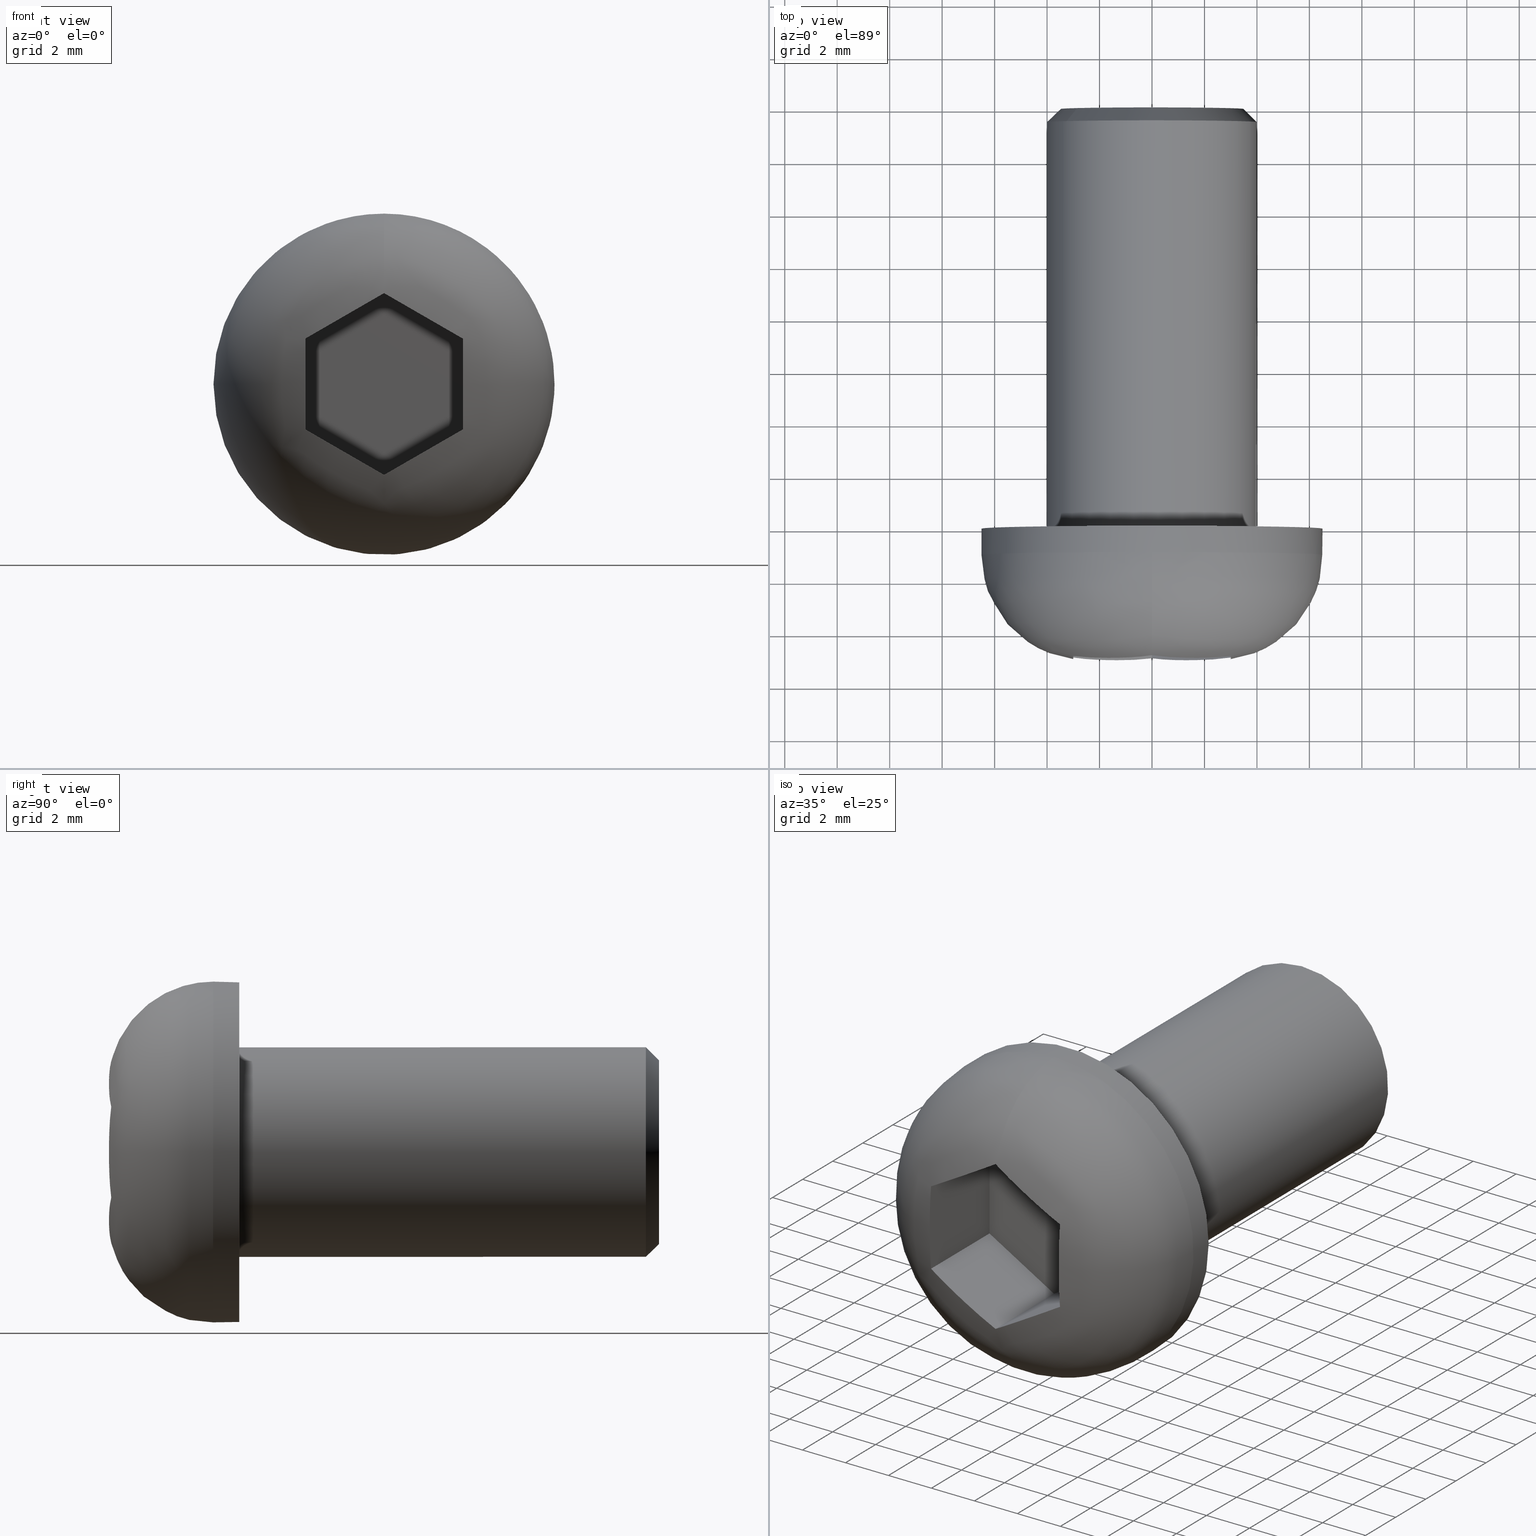
[diagram: canonical four-view strip — front | top / right | iso, engineering-drawing reading convention]
A machine part, canonical four-view strip (front | top / right | iso — engineering-drawing reading convention). The complete STEP part file that produces these views, byte-faithful:
ISO-10303-21;
HEADER;
/* Generated by software containing ST-Developer
 * from STEP Tools, Inc. (www.steptools.com) 
 */

FILE_DESCRIPTION(
/* description */ ('VITE TBEI 7380 10.9 8X16 ZN'),
/* implementation_level */ '2;1');

FILE_NAME(
/* name */ 
'C:\\Users\\tecnico7\\Desktop\\NUOVI DISEGNI 3D\\F3DTM0001586.stp',
/* time_stamp */ '2022-11-21T09:39:49+01:00',
/* author */ ('tecnico7'),
/* organization */ (''),
/* preprocessor_version */ 'ST-DEVELOPER v18.1',
/* originating_system */ 'Autodesk Inventor 2022',
/* authorisation */ '');

FILE_SCHEMA (('AUTOMOTIVE_DESIGN { 1 0 10303 214 3 1 1 }'));
ENDSEC;

DATA;
#10=MECHANICAL_DESIGN_GEOMETRIC_PRESENTATION_REPRESENTATION('',(#13),#447);
#11=SHAPE_REPRESENTATION_RELATIONSHIP('SRR','None',#454,#12);
#12=ADVANCED_BREP_SHAPE_REPRESENTATION('',(#14),#446);
#13=STYLED_ITEM('',(#463),#14);
#14=MANIFOLD_SOLID_BREP('None',#224);
#15=CONICAL_SURFACE('',#256,3.94999999998429,0.785398163397675);
#16=FACE_BOUND('',#74,.T.);
#17=PLANE('',#251);
#18=PLANE('',#258);
#19=PLANE('',#259);
#20=PLANE('',#260);
#21=PLANE('',#261);
#22=PLANE('',#262);
#23=PLANE('',#263);
#24=PLANE('',#264);
#25=PLANE('',#265);
#26=LINE('',#404,#41);
#27=LINE('',#412,#42);
#28=LINE('',#417,#43);
#29=LINE('',#421,#44);
#30=LINE('',#423,#45);
#31=LINE('',#424,#46);
#32=LINE('',#427,#47);
#33=LINE('',#428,#48);
#34=LINE('',#431,#49);
#35=LINE('',#432,#50);
#36=LINE('',#435,#51);
#37=LINE('',#436,#52);
#38=LINE('',#439,#53);
#39=LINE('',#440,#54);
#40=LINE('',#442,#55);
#41=VECTOR('',#276,6.49999999997408);
#42=VECTOR('',#285,3.99999999998409);
#43=VECTOR('',#292,3.94999999998429);
#44=VECTOR('',#297,3.88207522797666);
#45=VECTOR('',#298,3.88207522797666);
#46=VECTOR('',#299,3.46410161513775);
#47=VECTOR('',#302,3.88207522797666);
#48=VECTOR('',#303,3.46410161513775);
#49=VECTOR('',#306,3.88207522797666);
#50=VECTOR('',#307,3.46410161513775);
#51=VECTOR('',#310,3.88207522797666);
#52=VECTOR('',#311,3.46410161513775);
#53=VECTOR('',#314,3.88207522797666);
#54=VECTOR('',#315,3.46410161513776);
#55=VECTOR('',#318,3.46410161513776);
#56=CYLINDRICAL_SURFACE('',#249,6.49999999997408);
#57=CYLINDRICAL_SURFACE('',#253,3.99999999998409);
#58=FACE_OUTER_BOUND('',#71,.T.);
#59=FACE_OUTER_BOUND('',#72,.T.);
#60=FACE_OUTER_BOUND('',#73,.T.);
#61=FACE_OUTER_BOUND('',#75,.T.);
#62=FACE_OUTER_BOUND('',#76,.T.);
#63=FACE_OUTER_BOUND('',#77,.T.);
#64=FACE_OUTER_BOUND('',#78,.T.);
#65=FACE_OUTER_BOUND('',#79,.T.);
#66=FACE_OUTER_BOUND('',#80,.T.);
#67=FACE_OUTER_BOUND('',#81,.T.);
#68=FACE_OUTER_BOUND('',#82,.T.);
#69=FACE_OUTER_BOUND('',#83,.T.);
#70=FACE_OUTER_BOUND('',#84,.T.);
#71=EDGE_LOOP('',(#150,#151,#152,#153,#154,#155,#156,#157,#158,#159,#160));
#72=EDGE_LOOP('',(#161,#162,#163,#164,#165));
#73=EDGE_LOOP('',(#166));
#74=EDGE_LOOP('',(#167));
#75=EDGE_LOOP('',(#168,#169,#170,#171,#172));
#76=EDGE_LOOP('',(#173,#174,#175,#176,#177));
#77=EDGE_LOOP('',(#178));
#78=EDGE_LOOP('',(#179,#180,#181,#182));
#79=EDGE_LOOP('',(#183,#184,#185,#186));
#80=EDGE_LOOP('',(#187,#188,#189,#190));
#81=EDGE_LOOP('',(#191,#192,#193,#194,#195));
#82=EDGE_LOOP('',(#196,#197,#198,#199));
#83=EDGE_LOOP('',(#200,#201,#202,#203));
#84=EDGE_LOOP('',(#204,#205,#206,#207,#208,#209));
#85=CIRCLE('',#247,6.49999999997408);
#86=CIRCLE('',#248,6.49999999997408);
#87=CIRCLE('',#250,6.49999999997408);
#88=CIRCLE('',#252,3.99999999998409);
#89=CIRCLE('',#254,3.99999999998409);
#90=CIRCLE('',#255,3.99999999998409);
#91=CIRCLE('',#257,3.49999999998613);
#92=(
BOUNDED_CURVE()
B_SPLINE_CURVE(2,(#384,#385,#386),.UNSPECIFIED.,.F.,.F.)
B_SPLINE_CURVE_WITH_KNOTS((3,3),(-1.31910336717967,4.56802477800068E-13),
 .UNSPECIFIED.)
CURVE()
GEOMETRIC_REPRESENTATION_ITEM()
RATIONAL_B_SPLINE_CURVE((0.960110479545512,0.771855393049176,1.))
REPRESENTATION_ITEM('')
);
#93=B_SPLINE_CURVE_WITH_KNOTS('',3,(#351,#352,#353,#354),.UNSPECIFIED.,
 .F.,.F.,(4,4),(1.49072927553184,1.65455197266982),.UNSPECIFIED.);
#94=B_SPLINE_CURVE_WITH_KNOTS('',3,(#356,#357,#358,#359,#360,#361),
 .UNSPECIFIED.,.F.,.F.,(4,2,4),(1.32690657839386,1.49072927553184,1.65455197266982),
 .UNSPECIFIED.);
#95=B_SPLINE_CURVE_WITH_KNOTS('',3,(#363,#364,#365,#366,#367,#368),
 .UNSPECIFIED.,.F.,.F.,(4,2,4),(1.32690657839385,1.49072927553184,1.65455197266982),
 .UNSPECIFIED.);
#96=B_SPLINE_CURVE_WITH_KNOTS('',3,(#370,#371,#372,#373,#374,#375),
 .UNSPECIFIED.,.F.,.F.,(4,2,4),(1.32690657839385,1.49072927553184,1.65455197266982),
 .UNSPECIFIED.);
#97=B_SPLINE_CURVE_WITH_KNOTS('',3,(#377,#378,#379,#380,#381,#382),
 .UNSPECIFIED.,.F.,.F.,(4,2,4),(1.32690657839385,1.49072927553184,1.65455197266982),
 .UNSPECIFIED.);
#98=B_SPLINE_CURVE_WITH_KNOTS('',3,(#391,#392,#393,#394,#395,#396),
 .UNSPECIFIED.,.F.,.F.,(4,2,4),(1.32690657839385,1.49072927553184,1.65455197266982),
 .UNSPECIFIED.);
#99=B_SPLINE_CURVE_WITH_KNOTS('',3,(#397,#398,#399,#400),.UNSPECIFIED.,
 .F.,.F.,(4,4),(1.32690657839386,1.49072927553184),.UNSPECIFIED.);
#100=VERTEX_POINT('',#349);
#101=VERTEX_POINT('',#350);
#102=VERTEX_POINT('',#355);
#103=VERTEX_POINT('',#362);
#104=VERTEX_POINT('',#369);
#105=VERTEX_POINT('',#376);
#106=VERTEX_POINT('',#383);
#107=VERTEX_POINT('',#387);
#108=VERTEX_POINT('',#390);
#109=VERTEX_POINT('',#402);
#110=VERTEX_POINT('',#406);
#111=VERTEX_POINT('',#409);
#112=VERTEX_POINT('',#410);
#113=VERTEX_POINT('',#415);
#114=VERTEX_POINT('',#420);
#115=VERTEX_POINT('',#422);
#116=VERTEX_POINT('',#426);
#117=VERTEX_POINT('',#430);
#118=VERTEX_POINT('',#434);
#119=VERTEX_POINT('',#438);
#120=EDGE_CURVE('',#100,#101,#93,.T.);
#121=EDGE_CURVE('',#101,#102,#94,.T.);
#122=EDGE_CURVE('',#102,#103,#95,.T.);
#123=EDGE_CURVE('',#103,#104,#96,.T.);
#124=EDGE_CURVE('',#104,#105,#97,.T.);
#125=EDGE_CURVE('',#105,#106,#92,.T.);
#126=EDGE_CURVE('',#107,#106,#85,.T.);
#127=EDGE_CURVE('',#106,#107,#86,.T.);
#128=EDGE_CURVE('',#105,#108,#98,.T.);
#129=EDGE_CURVE('',#108,#100,#99,.T.);
#130=EDGE_CURVE('',#109,#109,#87,.T.);
#131=EDGE_CURVE('',#109,#107,#26,.T.);
#132=EDGE_CURVE('',#110,#110,#88,.T.);
#133=EDGE_CURVE('',#111,#112,#89,.T.);
#134=EDGE_CURVE('',#111,#110,#27,.T.);
#135=EDGE_CURVE('',#112,#111,#90,.T.);
#136=EDGE_CURVE('',#113,#113,#91,.T.);
#137=EDGE_CURVE('',#113,#112,#28,.T.);
#138=EDGE_CURVE('',#104,#114,#29,.T.);
#139=EDGE_CURVE('',#103,#115,#30,.T.);
#140=EDGE_CURVE('',#114,#115,#31,.T.);
#141=EDGE_CURVE('',#102,#116,#32,.T.);
#142=EDGE_CURVE('',#115,#116,#33,.T.);
#143=EDGE_CURVE('',#101,#117,#34,.T.);
#144=EDGE_CURVE('',#116,#117,#35,.T.);
#145=EDGE_CURVE('',#108,#118,#36,.T.);
#146=EDGE_CURVE('',#117,#118,#37,.T.);
#147=EDGE_CURVE('',#105,#119,#38,.T.);
#148=EDGE_CURVE('',#118,#119,#39,.T.);
#149=EDGE_CURVE('',#119,#114,#40,.T.);
#150=ORIENTED_EDGE('',*,*,#120,.T.);
#151=ORIENTED_EDGE('',*,*,#121,.T.);
#152=ORIENTED_EDGE('',*,*,#122,.T.);
#153=ORIENTED_EDGE('',*,*,#123,.T.);
#154=ORIENTED_EDGE('',*,*,#124,.T.);
#155=ORIENTED_EDGE('',*,*,#125,.T.);
#156=ORIENTED_EDGE('',*,*,#126,.F.);
#157=ORIENTED_EDGE('',*,*,#127,.F.);
#158=ORIENTED_EDGE('',*,*,#125,.F.);
#159=ORIENTED_EDGE('',*,*,#128,.T.);
#160=ORIENTED_EDGE('',*,*,#129,.T.);
#161=ORIENTED_EDGE('',*,*,#130,.F.);
#162=ORIENTED_EDGE('',*,*,#131,.T.);
#163=ORIENTED_EDGE('',*,*,#126,.T.);
#164=ORIENTED_EDGE('',*,*,#127,.T.);
#165=ORIENTED_EDGE('',*,*,#131,.F.);
#166=ORIENTED_EDGE('',*,*,#130,.T.);
#167=ORIENTED_EDGE('',*,*,#132,.F.);
#168=ORIENTED_EDGE('',*,*,#133,.F.);
#169=ORIENTED_EDGE('',*,*,#134,.T.);
#170=ORIENTED_EDGE('',*,*,#132,.T.);
#171=ORIENTED_EDGE('',*,*,#134,.F.);
#172=ORIENTED_EDGE('',*,*,#135,.F.);
#173=ORIENTED_EDGE('',*,*,#136,.F.);
#174=ORIENTED_EDGE('',*,*,#137,.T.);
#175=ORIENTED_EDGE('',*,*,#135,.T.);
#176=ORIENTED_EDGE('',*,*,#133,.T.);
#177=ORIENTED_EDGE('',*,*,#137,.F.);
#178=ORIENTED_EDGE('',*,*,#136,.T.);
#179=ORIENTED_EDGE('',*,*,#138,.F.);
#180=ORIENTED_EDGE('',*,*,#123,.F.);
#181=ORIENTED_EDGE('',*,*,#139,.T.);
#182=ORIENTED_EDGE('',*,*,#140,.F.);
#183=ORIENTED_EDGE('',*,*,#139,.F.);
#184=ORIENTED_EDGE('',*,*,#122,.F.);
#185=ORIENTED_EDGE('',*,*,#141,.T.);
#186=ORIENTED_EDGE('',*,*,#142,.F.);
#187=ORIENTED_EDGE('',*,*,#141,.F.);
#188=ORIENTED_EDGE('',*,*,#121,.F.);
#189=ORIENTED_EDGE('',*,*,#143,.T.);
#190=ORIENTED_EDGE('',*,*,#144,.F.);
#191=ORIENTED_EDGE('',*,*,#143,.F.);
#192=ORIENTED_EDGE('',*,*,#120,.F.);
#193=ORIENTED_EDGE('',*,*,#129,.F.);
#194=ORIENTED_EDGE('',*,*,#145,.T.);
#195=ORIENTED_EDGE('',*,*,#146,.F.);
#196=ORIENTED_EDGE('',*,*,#145,.F.);
#197=ORIENTED_EDGE('',*,*,#128,.F.);
#198=ORIENTED_EDGE('',*,*,#147,.T.);
#199=ORIENTED_EDGE('',*,*,#148,.F.);
#200=ORIENTED_EDGE('',*,*,#149,.F.);
#201=ORIENTED_EDGE('',*,*,#147,.F.);
#202=ORIENTED_EDGE('',*,*,#124,.F.);
#203=ORIENTED_EDGE('',*,*,#138,.T.);
#204=ORIENTED_EDGE('',*,*,#140,.T.);
#205=ORIENTED_EDGE('',*,*,#142,.T.);
#206=ORIENTED_EDGE('',*,*,#144,.T.);
#207=ORIENTED_EDGE('',*,*,#146,.T.);
#208=ORIENTED_EDGE('',*,*,#148,.T.);
#209=ORIENTED_EDGE('',*,*,#149,.T.);
#210=(
BOUNDED_SURFACE()
B_SPLINE_SURFACE(2,2,((#322,#323,#324,#325,#326,#327,#328,#329,#330),(#331,
#332,#333,#334,#335,#336,#337,#338,#339),(#340,#341,#342,#343,#344,#345,
#346,#347,#348)),.UNSPECIFIED.,.F.,.T.,.F.)
B_SPLINE_SURFACE_WITH_KNOTS((3,3),(3,2,2,2,3),(-4.56802477800068E-13,1.44546849562421),
(-3.14159265358979,-1.5707963267949,0.,1.5707963267949,3.14159265358979),
 .UNSPECIFIED.)
GEOMETRIC_REPRESENTATION_ITEM()
RATIONAL_B_SPLINE_SURFACE(((1.,0.707106781186548,1.,0.707106781186548,1.,
0.707106781186548,1.,0.707106781186548,1.),(0.750000000000716,0.530330085890417,
0.750000000000716,0.530330085890417,0.750000000000716,0.530330085890417,
0.750000000000716,0.530330085890417,0.750000000000716),(1.,0.707106781186548,
1.,0.707106781186548,1.,0.707106781186548,1.,0.707106781186548,1.)))
REPRESENTATION_ITEM('')
SURFACE()
);
#211=ADVANCED_FACE('',(#58),#210,.F.);
#212=ADVANCED_FACE('',(#59),#56,.T.);
#213=ADVANCED_FACE('',(#60,#16),#17,.T.);
#214=ADVANCED_FACE('',(#61),#57,.T.);
#215=ADVANCED_FACE('',(#62),#15,.T.);
#216=ADVANCED_FACE('',(#63),#18,.T.);
#217=ADVANCED_FACE('',(#64),#19,.T.);
#218=ADVANCED_FACE('',(#65),#20,.T.);
#219=ADVANCED_FACE('',(#66),#21,.T.);
#220=ADVANCED_FACE('',(#67),#22,.T.);
#221=ADVANCED_FACE('',(#68),#23,.T.);
#222=ADVANCED_FACE('',(#69),#24,.T.);
#223=ADVANCED_FACE('',(#70),#25,.T.);
#224=CLOSED_SHELL('',(#211,#212,#213,#214,#215,#216,#217,#218,#219,#220,
#221,#222,#223));
#225=DERIVED_UNIT_ELEMENT(#228,1.);
#226=DERIVED_UNIT_ELEMENT(#449,-3.);
#227=DIMENSIONAL_EXPONENTS(1.,0.,0.,0.,0.,0.,0.);
#228=(
CONVERSION_BASED_UNIT('gram',#230)
MASS_UNIT()
NAMED_UNIT(#227)
);
#229=(
MASS_UNIT()
NAMED_UNIT(*)
SI_UNIT(.KILO.,.GRAM.)
);
#230=MASS_MEASURE_WITH_UNIT(MASS_MEASURE(0.001),#229);
#231=DERIVED_UNIT((#225,#226));
#232=MEASURE_REPRESENTATION_ITEM('density measure',
POSITIVE_RATIO_MEASURE(7.85),#231);
#233=PROPERTY_DEFINITION_REPRESENTATION(#238,#235);
#234=PROPERTY_DEFINITION_REPRESENTATION(#239,#236);
#235=REPRESENTATION('material name',(#237),#446);
#236=REPRESENTATION('density',(#232),#446);
#237=DESCRIPTIVE_REPRESENTATION_ITEM('Acciaio','Acciaio');
#238=PROPERTY_DEFINITION('material property','material name',#456);
#239=PROPERTY_DEFINITION('material property','density of part',#456);
#240=DATE_TIME_ROLE('creation_date');
#241=APPLIED_DATE_AND_TIME_ASSIGNMENT(#242,#240,(#456));
#242=DATE_AND_TIME(#243,#244);
#243=CALENDAR_DATE(2013,27,6);
#244=LOCAL_TIME(0,0,0.,#245);
#245=COORDINATED_UNIVERSAL_TIME_OFFSET(0,0,.BEHIND.);
#246=AXIS2_PLACEMENT_3D('placement',#321,#266,#267);
#247=AXIS2_PLACEMENT_3D('',#388,#268,#269);
#248=AXIS2_PLACEMENT_3D('',#389,#270,#271);
#249=AXIS2_PLACEMENT_3D('',#401,#272,#273);
#250=AXIS2_PLACEMENT_3D('',#403,#274,#275);
#251=AXIS2_PLACEMENT_3D('',#405,#277,#278);
#252=AXIS2_PLACEMENT_3D('',#407,#279,#280);
#253=AXIS2_PLACEMENT_3D('',#408,#281,#282);
#254=AXIS2_PLACEMENT_3D('',#411,#283,#284);
#255=AXIS2_PLACEMENT_3D('',#413,#286,#287);
#256=AXIS2_PLACEMENT_3D('',#414,#288,#289);
#257=AXIS2_PLACEMENT_3D('',#416,#290,#291);
#258=AXIS2_PLACEMENT_3D('',#418,#293,#294);
#259=AXIS2_PLACEMENT_3D('',#419,#295,#296);
#260=AXIS2_PLACEMENT_3D('',#425,#300,#301);
#261=AXIS2_PLACEMENT_3D('',#429,#304,#305);
#262=AXIS2_PLACEMENT_3D('',#433,#308,#309);
#263=AXIS2_PLACEMENT_3D('',#437,#312,#313);
#264=AXIS2_PLACEMENT_3D('',#441,#316,#317);
#265=AXIS2_PLACEMENT_3D('',#443,#319,#320);
#266=DIRECTION('axis',(0.,0.,1.));
#267=DIRECTION('refdir',(1.,0.,0.));
#268=DIRECTION('center_axis',(0.,1.,0.));
#269=DIRECTION('ref_axis',(1.,0.,0.));
#270=DIRECTION('center_axis',(0.,1.,0.));
#271=DIRECTION('ref_axis',(1.,0.,0.));
#272=DIRECTION('center_axis',(0.,1.,0.));
#273=DIRECTION('ref_axis',(1.,0.,0.));
#274=DIRECTION('center_axis',(0.,1.,0.));
#275=DIRECTION('ref_axis',(1.,0.,0.));
#276=DIRECTION('',(0.,-1.,0.));
#277=DIRECTION('center_axis',(0.,1.,0.));
#278=DIRECTION('ref_axis',(0.,0.,1.));
#279=DIRECTION('center_axis',(0.,1.,0.));
#280=DIRECTION('ref_axis',(1.,0.,0.));
#281=DIRECTION('center_axis',(0.,1.,0.));
#282=DIRECTION('ref_axis',(1.,0.,0.));
#283=DIRECTION('center_axis',(0.,1.,0.));
#284=DIRECTION('ref_axis',(1.,0.,0.));
#285=DIRECTION('',(0.,-1.,0.));
#286=DIRECTION('center_axis',(0.,1.,0.));
#287=DIRECTION('ref_axis',(1.,0.,0.));
#288=DIRECTION('center_axis',(-5.60707097042313E-17,-1.,-7.60126447506034E-16));
#289=DIRECTION('ref_axis',(0.813826036051075,3.96084197960991E-16,-0.581108581114919));
#290=DIRECTION('center_axis',(0.,1.,0.));
#291=DIRECTION('ref_axis',(1.,0.,0.));
#292=DIRECTION('',(-0.575461908798013,-0.707106781186388,0.410905818312145));
#293=DIRECTION('center_axis',(0.,1.,0.));
#294=DIRECTION('ref_axis',(0.,0.,1.));
#295=DIRECTION('center_axis',(1.,0.,0.));
#296=DIRECTION('ref_axis',(0.,0.,-1.));
#297=DIRECTION('',(0.,1.,0.));
#298=DIRECTION('',(0.,1.,0.));
#299=DIRECTION('',(0.,0.,-1.));
#300=DIRECTION('center_axis',(0.5,0.,0.866025403784439));
#301=DIRECTION('ref_axis',(0.866025403784439,0.,-0.5));
#302=DIRECTION('',(0.,1.,0.));
#303=DIRECTION('',(0.866025403784439,0.,-0.5));
#304=DIRECTION('center_axis',(-0.5,0.,0.866025403784439));
#305=DIRECTION('ref_axis',(0.866025403784439,0.,0.5));
#306=DIRECTION('',(0.,1.,0.));
#307=DIRECTION('',(0.866025403784439,0.,0.5));
#308=DIRECTION('center_axis',(-1.,0.,0.));
#309=DIRECTION('ref_axis',(0.,0.,1.));
#310=DIRECTION('',(0.,1.,0.));
#311=DIRECTION('',(0.,0.,1.));
#312=DIRECTION('center_axis',(-0.5,0.,-0.866025403784438));
#313=DIRECTION('ref_axis',(-0.866025403784438,0.,0.5));
#314=DIRECTION('',(0.,1.,0.));
#315=DIRECTION('',(-0.866025403784438,0.,0.5));
#316=DIRECTION('center_axis',(0.5,0.,-0.866025403784439));
#317=DIRECTION('ref_axis',(-0.866025403784439,0.,-0.5));
#318=DIRECTION('',(-0.866025403784439,0.,-0.5));
#319=DIRECTION('center_axis',(0.,-1.,0.));
#320=DIRECTION('ref_axis',(0.,0.,-1.));
#321=CARTESIAN_POINT('',(0.,0.,0.));
#322=CARTESIAN_POINT('Ctrl Pts',(2.91433543963884E-15,-0.999999999995891,
6.49999999997408));
#323=CARTESIAN_POINT('Ctrl Pts',(-6.49999999997408,-0.999999999995899,6.49999999997408));
#324=CARTESIAN_POINT('Ctrl Pts',(-6.49999999997408,-0.999999999995905,1.24900090270172E-15));
#325=CARTESIAN_POINT('Ctrl Pts',(-6.49999999997408,-0.99999999999591,-6.49999999997408));
#326=CARTESIAN_POINT('Ctrl Pts',(2.91433543963884E-15,-0.999999999995902,
-6.49999999997408));
#327=CARTESIAN_POINT('Ctrl Pts',(6.49999999997408,-0.999999999995895,-6.49999999997408));
#328=CARTESIAN_POINT('Ctrl Pts',(6.49999999997409,-0.999999999995889,1.24900090270171E-15));
#329=CARTESIAN_POINT('Ctrl Pts',(6.49999999997408,-0.999999999995883,6.49999999997408));
#330=CARTESIAN_POINT('Ctrl Pts',(2.91433543963884E-15,-0.999999999995891,
6.49999999997408));
#331=CARTESIAN_POINT('Ctrl Pts',(7.15911465258913E-15,-4.52766841472535,
6.4999999999757));
#332=CARTESIAN_POINT('Ctrl Pts',(-6.49999999997569,-4.52766841472536,6.4999999999757));
#333=CARTESIAN_POINT('Ctrl Pts',(-6.49999999997569,-4.52766841472537,4.30805414182356E-15));
#334=CARTESIAN_POINT('Ctrl Pts',(-6.49999999997569,-4.52766841472537,-6.49999999997569));
#335=CARTESIAN_POINT('Ctrl Pts',(7.15911465258913E-15,-4.52766841472536,
-6.49999999997569));
#336=CARTESIAN_POINT('Ctrl Pts',(6.4999999999757,-4.52766841472536,-6.49999999997569));
#337=CARTESIAN_POINT('Ctrl Pts',(6.4999999999757,-4.52766841472535,4.30805414182354E-15));
#338=CARTESIAN_POINT('Ctrl Pts',(6.4999999999757,-4.52766841472534,6.4999999999757));
#339=CARTESIAN_POINT('Ctrl Pts',(7.15911465258913E-15,-4.52766841472535,
6.4999999999757));
#340=CARTESIAN_POINT('Ctrl Pts',(7.68971205421895E-15,-4.96862696657571,
3.));
#341=CARTESIAN_POINT('Ctrl Pts',(-2.99999999999998,-4.96862696657571,3.));
#342=CARTESIAN_POINT('Ctrl Pts',(-2.99999999999998,-4.96862696657571,4.69043579672173E-15));
#343=CARTESIAN_POINT('Ctrl Pts',(-2.99999999999998,-4.96862696657571,-2.99999999999999));
#344=CARTESIAN_POINT('Ctrl Pts',(7.68971205421895E-15,-4.96862696657571,
-2.99999999999999));
#345=CARTESIAN_POINT('Ctrl Pts',(3.,-4.96862696657571,-2.99999999999999));
#346=CARTESIAN_POINT('Ctrl Pts',(3.,-4.9686269665757,4.69043579672172E-15));
#347=CARTESIAN_POINT('Ctrl Pts',(3.,-4.9686269665757,3.));
#348=CARTESIAN_POINT('Ctrl Pts',(7.68971205421895E-15,-4.96862696657571,
3.));
#349=CARTESIAN_POINT('',(3.,-4.96862696657581,0.));
#350=CARTESIAN_POINT('',(3.,-4.88207522795665,-1.73205080756888));
#351=CARTESIAN_POINT('Ctrl Pts',(3.,-4.9686269665757,4.61436444609831E-15));
#352=CARTESIAN_POINT('Ctrl Pts',(3.,-4.9686269665757,-0.546075657126606));
#353=CARTESIAN_POINT('Ctrl Pts',(3.,-4.9550549531712,-1.14432690181362));
#354=CARTESIAN_POINT('Ctrl Pts',(3.,-4.88207522795649,-1.73205080756886));
#355=CARTESIAN_POINT('',(0.,-4.88207522795665,-3.46410161513775));
#356=CARTESIAN_POINT('Ctrl Pts',(2.99999999999998,-4.8820752279565,-1.73205080756889));
#357=CARTESIAN_POINT('Ctrl Pts',(2.49101616720454,-4.9550549531712,-2.02591276044651));
#358=CARTESIAN_POINT('Ctrl Pts',(1.97291539145993,-4.96862696657571,-2.32503838279001));
#359=CARTESIAN_POINT('Ctrl Pts',(1.02708460854008,-4.96862696657571,-2.87111403991662));
#360=CARTESIAN_POINT('Ctrl Pts',(0.508983832795468,-4.9550549531712,-3.17023966226012));
#361=CARTESIAN_POINT('Ctrl Pts',(1.70696790036118E-14,-4.8820752279565,
-3.46410161513775));
#362=CARTESIAN_POINT('',(-3.,-4.88207522795665,-1.73205080756888));
#363=CARTESIAN_POINT('Ctrl Pts',(-1.62370117351429E-14,-4.8820752279565,
-3.46410161513774));
#364=CARTESIAN_POINT('Ctrl Pts',(-0.508983832795463,-4.9550549531712,-3.17023966226013));
#365=CARTESIAN_POINT('Ctrl Pts',(-1.02708460854007,-4.96862696657571,-2.87111403991662));
#366=CARTESIAN_POINT('Ctrl Pts',(-1.97291539145992,-4.96862696657571,-2.32503838279001));
#367=CARTESIAN_POINT('Ctrl Pts',(-2.49101616720453,-4.95505495317121,-2.02591276044651));
#368=CARTESIAN_POINT('Ctrl Pts',(-2.99999999999998,-4.8820752279565,-1.73205080756889));
#369=CARTESIAN_POINT('',(-3.,-4.88207522795665,1.73205080756888));
#370=CARTESIAN_POINT('Ctrl Pts',(-3.,-4.8820752279565,-1.73205080756886));
#371=CARTESIAN_POINT('Ctrl Pts',(-3.,-4.95505495317121,-1.14432690181362));
#372=CARTESIAN_POINT('Ctrl Pts',(-3.,-4.96862696657571,-0.546075657126606));
#373=CARTESIAN_POINT('Ctrl Pts',(-3.,-4.96862696657571,0.546075657126612));
#374=CARTESIAN_POINT('Ctrl Pts',(-3.,-4.9550549531712,1.14432690181362));
#375=CARTESIAN_POINT('Ctrl Pts',(-3.,-4.8820752279565,1.73205080756886));
#376=CARTESIAN_POINT('',(0.,-4.88207522795665,3.46410161513775));
#377=CARTESIAN_POINT('Ctrl Pts',(-2.99999999999998,-4.8820752279565,1.73205080756889));
#378=CARTESIAN_POINT('Ctrl Pts',(-2.49101616720453,-4.9550549531712,2.02591276044651));
#379=CARTESIAN_POINT('Ctrl Pts',(-1.97291539145992,-4.96862696657571,2.32503838279002));
#380=CARTESIAN_POINT('Ctrl Pts',(-1.02708460854007,-4.96862696657571,2.87111403991662));
#381=CARTESIAN_POINT('Ctrl Pts',(-0.508983832795462,-4.9550549531712,3.17023966226013));
#382=CARTESIAN_POINT('Ctrl Pts',(-1.65839564303383E-14,-4.88207522795649,
3.46410161513775));
#383=CARTESIAN_POINT('',(2.11831502019625E-15,-0.999999999995907,6.49999999997408));
#384=CARTESIAN_POINT('Ctrl Pts',(7.58556592205939E-15,-4.8820752279565,
3.46410161513772));
#385=CARTESIAN_POINT('Ctrl Pts',(6.67834419253319E-15,-4.12811906678753,
6.49999999997552));
#386=CARTESIAN_POINT('Ctrl Pts',(2.91433543963884E-15,-0.999999999995891,
6.49999999997408));
#387=CARTESIAN_POINT('',(-6.49999999997408,-0.999999999995907,0.));
#388=CARTESIAN_POINT('Origin',(0.,-0.999999999995907,0.));
#389=CARTESIAN_POINT('Origin',(0.,-0.999999999995907,0.));
#390=CARTESIAN_POINT('',(3.,-4.88207522795665,1.73205080756888));
#391=CARTESIAN_POINT('Ctrl Pts',(1.78329573330416E-14,-4.88207522795649,
3.46410161513775));
#392=CARTESIAN_POINT('Ctrl Pts',(0.508983832795468,-4.9550549531712,3.17023966226012));
#393=CARTESIAN_POINT('Ctrl Pts',(1.02708460854008,-4.9686269665757,2.87111403991662));
#394=CARTESIAN_POINT('Ctrl Pts',(1.97291539145993,-4.9686269665757,2.32503838279001));
#395=CARTESIAN_POINT('Ctrl Pts',(2.49101616720454,-4.9550549531712,2.0259127604465));
#396=CARTESIAN_POINT('Ctrl Pts',(2.99999999999998,-4.88207522795649,1.73205080756889));
#397=CARTESIAN_POINT('Ctrl Pts',(3.,-4.88207522795649,1.73205080756886));
#398=CARTESIAN_POINT('Ctrl Pts',(3.,-4.9550549531712,1.14432690181362));
#399=CARTESIAN_POINT('Ctrl Pts',(3.,-4.9686269665757,0.546075657126612));
#400=CARTESIAN_POINT('Ctrl Pts',(3.,-4.9686269665757,4.68375338513738E-15));
#401=CARTESIAN_POINT('Origin',(0.,-0.999999999995907,0.));
#402=CARTESIAN_POINT('',(-6.49999999997408,0.,0.));
#403=CARTESIAN_POINT('Origin',(0.,0.,0.));
#404=CARTESIAN_POINT('',(-6.49999999997408,-0.999999999995907,7.96020419442605E-16));
#405=CARTESIAN_POINT('Origin',(12.9999999999482,0.,12.9999999999482));
#406=CARTESIAN_POINT('',(-3.99999999998409,0.,0.));
#407=CARTESIAN_POINT('Origin',(0.,0.,0.));
#408=CARTESIAN_POINT('Origin',(0.,0.,0.));
#409=CARTESIAN_POINT('',(-3.99999999998409,15.4999999999382,0.));
#410=CARTESIAN_POINT('',(-3.25530414419134,15.4999999999381,2.32443432445043));
#411=CARTESIAN_POINT('Origin',(0.,15.4999999999382,0.));
#412=CARTESIAN_POINT('',(-3.99999999998409,0.,4.89858719656992E-16));
#413=CARTESIAN_POINT('Origin',(0.,15.4999999999382,0.));
#414=CARTESIAN_POINT('Origin',(2.22044604925031E-15,15.5499999999379,-2.77555756156289E-16));
#415=CARTESIAN_POINT('',(-2.84839112616747,15.9999999999359,2.03388003389416));
#416=CARTESIAN_POINT('Origin',(0.,15.9999999999359,0.));
#417=CARTESIAN_POINT('',(-3.21461284238896,15.5499999999379,2.2953788953948));
#418=CARTESIAN_POINT('Origin',(6.99999999997226,15.9999999999359,6.99999999997226));
#419=CARTESIAN_POINT('Origin',(-3.,-4.99999999997999,1.73205080756888));
#420=CARTESIAN_POINT('',(-3.,-0.999999999979991,1.73205080756888));
#421=CARTESIAN_POINT('',(-3.,-4.88207522795665,1.73205080756888));
#422=CARTESIAN_POINT('',(-3.,-0.999999999979991,-1.73205080756888));
#423=CARTESIAN_POINT('',(-3.,-4.88207522795665,-1.73205080756888));
#424=CARTESIAN_POINT('',(-3.,-0.999999999979991,1.73205080756888));
#425=CARTESIAN_POINT('Origin',(-3.,-4.99999999997999,-1.73205080756888));
#426=CARTESIAN_POINT('',(0.,-0.999999999979991,-3.46410161513775));
#427=CARTESIAN_POINT('',(0.,-4.88207522795665,-3.46410161513775));
#428=CARTESIAN_POINT('',(-3.,-0.999999999979991,-1.73205080756888));
#429=CARTESIAN_POINT('Origin',(0.,-4.99999999997999,-3.46410161513775));
#430=CARTESIAN_POINT('',(3.,-0.999999999979991,-1.73205080756888));
#431=CARTESIAN_POINT('',(3.,-4.88207522795665,-1.73205080756888));
#432=CARTESIAN_POINT('',(0.,-0.999999999979991,-3.46410161513775));
#433=CARTESIAN_POINT('Origin',(3.,-4.99999999997999,-1.73205080756888));
#434=CARTESIAN_POINT('',(3.,-0.999999999979991,1.73205080756888));
#435=CARTESIAN_POINT('',(3.,-4.88207522795665,1.73205080756888));
#436=CARTESIAN_POINT('',(3.,-0.999999999979991,-1.73205080756888));
#437=CARTESIAN_POINT('Origin',(3.,-4.99999999997999,1.73205080756888));
#438=CARTESIAN_POINT('',(0.,-0.999999999979991,3.46410161513775));
#439=CARTESIAN_POINT('',(0.,-4.88207522795665,3.46410161513775));
#440=CARTESIAN_POINT('',(3.,-0.999999999979991,1.73205080756888));
#441=CARTESIAN_POINT('Origin',(0.,-4.99999999997999,3.46410161513775));
#442=CARTESIAN_POINT('',(0.,-0.999999999979991,3.46410161513775));
#443=CARTESIAN_POINT('Origin',(-3.60000472442152,-0.999999999979991,4.15692666258672));
#444=UNCERTAINTY_MEASURE_WITH_UNIT(LENGTH_MEASURE(0.01),#448,
'DISTANCE_ACCURACY_VALUE',
'Maximum model space distance between geometric entities at asserted c
onnectivities');
#445=UNCERTAINTY_MEASURE_WITH_UNIT(LENGTH_MEASURE(0.01),#448,
'DISTANCE_ACCURACY_VALUE',
'Maximum model space distance between geometric entities at asserted c
onnectivities');
#446=(
GEOMETRIC_REPRESENTATION_CONTEXT(3)
GLOBAL_UNCERTAINTY_ASSIGNED_CONTEXT((#444))
GLOBAL_UNIT_ASSIGNED_CONTEXT((#448,#450,#451))
REPRESENTATION_CONTEXT('','3D')
);
#447=(
GEOMETRIC_REPRESENTATION_CONTEXT(3)
GLOBAL_UNCERTAINTY_ASSIGNED_CONTEXT((#445))
GLOBAL_UNIT_ASSIGNED_CONTEXT((#448,#450,#451))
REPRESENTATION_CONTEXT('','3D')
);
#448=(
LENGTH_UNIT()
NAMED_UNIT(*)
SI_UNIT(.MILLI.,.METRE.)
);
#449=(
LENGTH_UNIT()
NAMED_UNIT(*)
SI_UNIT(.CENTI.,.METRE.)
);
#450=(
NAMED_UNIT(*)
PLANE_ANGLE_UNIT()
SI_UNIT($,.RADIAN.)
);
#451=(
NAMED_UNIT(*)
SI_UNIT($,.STERADIAN.)
SOLID_ANGLE_UNIT()
);
#452=SHAPE_DEFINITION_REPRESENTATION(#453,#454);
#453=PRODUCT_DEFINITION_SHAPE('',$,#456);
#454=SHAPE_REPRESENTATION('',(#246),#446);
#455=PRODUCT_DEFINITION_CONTEXT('part definition',#460,'design');
#456=PRODUCT_DEFINITION('F3DTM0001586','F3DTM0001586',#457,#455);
#457=PRODUCT_DEFINITION_FORMATION('A',$,#462);
#458=PRODUCT_RELATED_PRODUCT_CATEGORY('F3DTM0001586','F3DTM0001586',(#462));
#459=APPLICATION_PROTOCOL_DEFINITION('international standard',
'automotive_design',2009,#460);
#460=APPLICATION_CONTEXT(
'Core Data for Automotive Mechanical Design Process');
#461=PRODUCT_CONTEXT('part definition',#460,'mechanical');
#462=PRODUCT('F3DTM0001586','F3DTM0001586',
'VITE TBEI 7380 10.9 8X16 ZN',(#461));
#463=PRESENTATION_STYLE_ASSIGNMENT((#464));
#464=SURFACE_STYLE_USAGE(.BOTH.,#467);
#465=SURFACE_STYLE_RENDERING_WITH_PROPERTIES($,#471,(#466));
#466=SURFACE_STYLE_TRANSPARENT(0.);
#467=SURFACE_SIDE_STYLE('',(#468,#465));
#468=SURFACE_STYLE_FILL_AREA(#469);
#469=FILL_AREA_STYLE('',(#470));
#470=FILL_AREA_STYLE_COLOUR('',#471);
#471=COLOUR_RGB('',0.87843137254902,0.874509803921569,0.858823529411765);
ENDSEC;
END-ISO-10303-21;
